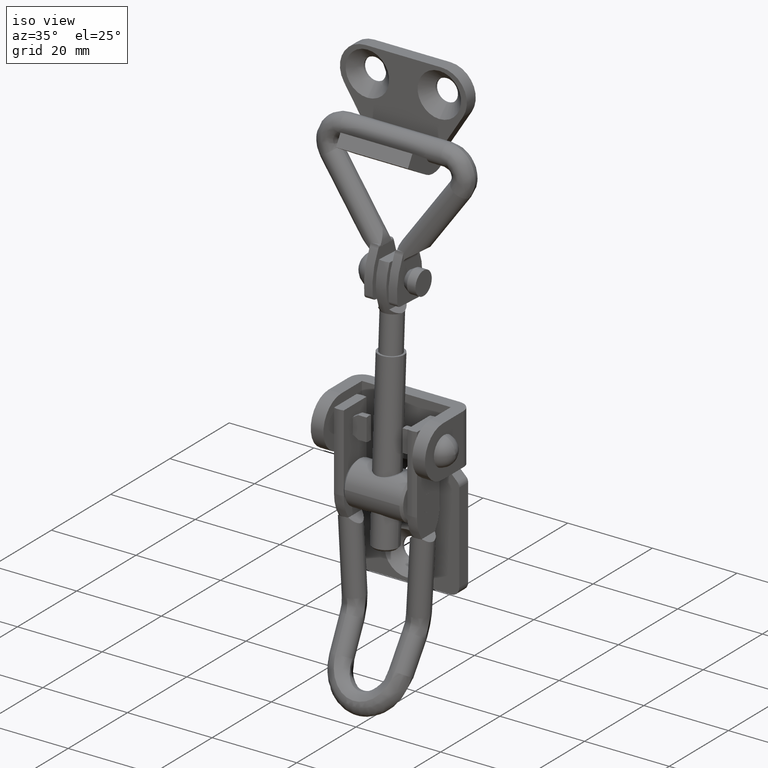
[diagram: clean part render]
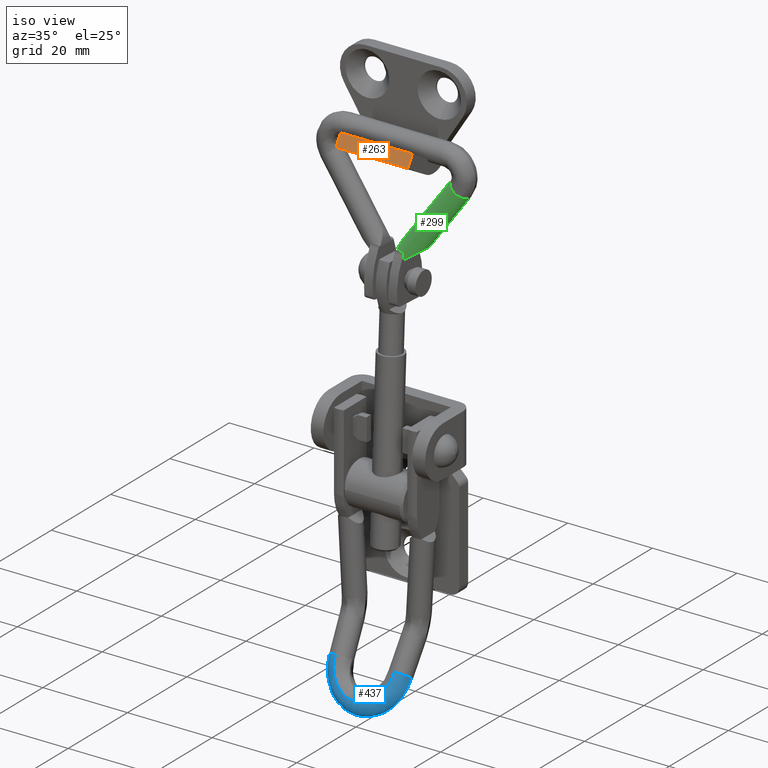
[diagram: same view with three faces highlighted in distinct colors, each labeled with its STEP entity id]
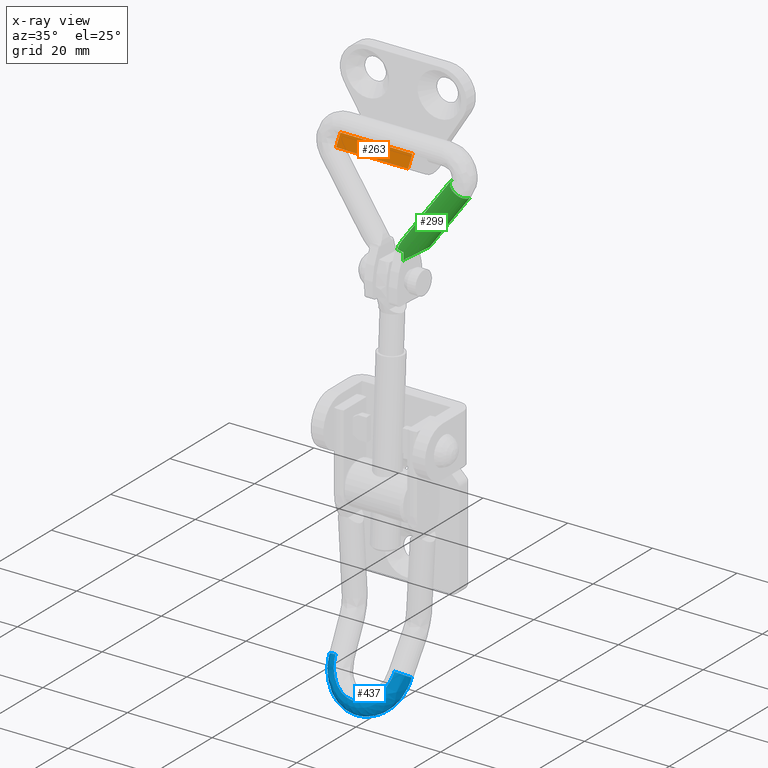
[diagram: x-ray of the same camera — body ghosted, the three highlighted faces saturated]
A machine part, iso view with three faces highlighted in distinct colors.
The next image is the same camera in x-ray (body ghosted, the three faces saturated) — at least one of them is partly hidden behind the body in this view.
Their STEP definitions:

[orange] entity #263 — the highlighted planar face has unit normal (0, 0.866, -0.5).
#263=ADVANCED_FACE('',(#515),#514,.F.);
#514=PLANE('',#2755);
#515=FACE_OUTER_BOUND('',#2756,.T.);
#2752=CARTESIAN_POINT('',(-1.02000000000E+01,-1.07500000000E+01,-1.19578838325E+01));
#2753=DIRECTION('',(0.00000000000E+00,8.66025403784E-01,-5.00000000000E-01));
#2754=DIRECTION('',(0.00000000000E+00,5.00000000000E-01,8.66025403784E-01));
#2755=AXIS2_PLACEMENT_3D('',#2752,#2753,#2754);
#2756=EDGE_LOOP('',(#4560,#4561,#4562,#4563));
#4560=ORIENTED_EDGE('',*,*,#5630,.T.);
#4561=ORIENTED_EDGE('',*,*,#5631,.F.);
#4562=ORIENTED_EDGE('',*,*,#5632,.F.);
#4563=ORIENTED_EDGE('',*,*,#5617,.T.);
#5617=EDGE_CURVE('',#6183,#6176,#6184,.T.);
#5630=EDGE_CURVE('',#6176,#6272,#6273,.T.);
#5631=EDGE_CURVE('',#6279,#6272,#6280,.T.);
#5632=EDGE_CURVE('',#6183,#6279,#6286,.T.);
#6176=VERTEX_POINT('',#9719);
#6183=VERTEX_POINT('',#9723);
#6184=LINE('',#9724,#9725);
#6272=VERTEX_POINT('',#9779);
#6273=LINE('',#9780,#9781);
#6279=VERTEX_POINT('',#9783);
#6280=LINE('',#9784,#9785);
#6286=LINE('',#9787,#9788);
#9719=CARTESIAN_POINT('',(-8.50000000000E+00,-9.10000000000E+00,-9.10000000000E+00));
#9723=CARTESIAN_POINT('',(8.50000000000E+00,-9.10000000000E+00,-9.10000000000E+00));
#9724=CARTESIAN_POINT('',(8.50000000000E+00,-9.10000000000E+00,-9.10000000000E+00));
#9725=VECTOR('',#9726,1.70000000000E+01);
#9726=DIRECTION('',(-1.00000000000E+00,0.00000000000E+00,0.00000000000E+00));
#9779=CARTESIAN_POINT('',(-8.50000000000E+00,-1.06000000000E+01,-1.16980762114E+01));
#9780=CARTESIAN_POINT('',(-8.50000000000E+00,-9.10000000000E+00,-9.10000000000E+00));
#9781=VECTOR('',#9782,3.00000000000E+00);
#9782=DIRECTION('',(0.00000000000E+00,-5.00000000000E-01,-8.66025403784E-01));
#9783=CARTESIAN_POINT('',(8.50000000000E+00,-1.06000000000E+01,-1.16980762114E+01));
#9784=CARTESIAN_POINT('',(8.50000000000E+00,-1.06000000000E+01,-1.16980762114E+01));
#9785=VECTOR('',#9786,1.70000000000E+01);
#9786=DIRECTION('',(-1.00000000000E+00,0.00000000000E+00,0.00000000000E+00));
#9787=CARTESIAN_POINT('',(8.50000000000E+00,-9.10000000000E+00,-9.10000000000E+00));
#9788=VECTOR('',#9789,3.00000000000E+00);
#9789=DIRECTION('',(0.00000000000E+00,-5.00000000000E-01,-8.66025403784E-01));

[blue] entity #437 — the highlighted face is a freeform B-spline surface patch.
#437=ADVANCED_FACE('',(#2280),#2279,.T.);
#2279=( BOUNDED_SURFACE() B_SPLINE_SURFACE( 3,2,((#4014,#4015,#4016),(#4017,#4018,#4019),(#4020,#4021,#4022),(#4023,#4024,#4025),(#4026,#4027,#4028),(#4029,#4030,#4031),(#4032,#4033,#4034),(#4035,#4036,#4037),(#4038,#4039,#4040),(#4041,#4042,#4043),(#4044,#4045,#4046),(#4047,#4048,#4049),(#4050,#4051,#4052),(#4053,#4054,#4055),(#4056,#4057,#4058),(#4059,#4060,#4061),(#4062,#4063,#4064),(#4065,#4066,#4067),(#4068,#4069,#4070),(#4071,#4072,#4073),(#4074,#4075,#4076),(#4077,#4078,#4079),(#4080,#4081,#4082),(#4083,#4084,#4085),(#4086,#4087,#4088),(#4089,#4090,#4091)), .UNSPECIFIED.,.F.,.F.,.F.) B_SPLINE_SURFACE_WITH_KNOTS((4,2,2,2,2,2,2,2,2,2,2,2,4),(3,3),(4.76735688268E+00,5.14631398880E+00,5.52527109493E+00,5.71474964799E+00,5.90422820105E+00,6.09370675412E+00,6.28318530718E+00,6.47266386024E+00,6.66214241331E+00,6.85162096637E+00,7.04109951943E+00,7.42005662556E+00,7.79901373168E+00),(0.00000000000E+00,1.00000000000E+00), .UNSPECIFIED. ) GEOMETRIC_REPRESENTATION_ITEM() RATIONAL_B_SPLINE_SURFACE(((1.00000000000E+00,6.97326999008E-01,1.00000000000E+00),(1.00000000000E+00,6.74733973146E-01,1.00000000000E+00),(1.00000000000E+00,6.51201940574E-01,1.00000000000E+00),(1.00000000000E+00,6.05605411265E-01,1.00000000000E+00),(1.00000000000E+00,5.83532613029E-01,1.00000000000E+00),(1.00000000000E+00,5.54680591126E-01,1.00000000000E+00),(1.00000000000E+00,5.45780470194E-01,1.00000000000E+00),(1.00000000000E+00,5.29977814437E-01,1.00000000000E+00),(1.00000000000E+00,5.23078020904E-01,1.00000000000E+00),(1.00000000000E+00,5.11788655972E-01,1.00000000000E+00),(1.00000000000E+00,5.07402224067E-01,1.00000000000E+00),(1.00000000000E+00,5.01506799872E-01,1.00000000000E+00),(1.00000000000E+00,5.00000000021E-01,1.00000000000E+00),(1.00000000000E+00,5.00000000021E-01,1.00000000000E+00),(1.00000000000E+00,5.01506799872E-01,1.00000000000E+00),(1.00000000000E+00,5.07402224067E-01,1.00000000000E+00),(1.00000000000E+00,5.11788655972E-01,1.00000000000E+00),(1.00000000000E+00,5.23078020904E-01,1.00000000000E+00),(1.00000000000E+00,5.29977814437E-01,1.00000000000E+00),(1.00000000000E+00,5.45780470194E-01,1.00000000000E+00),(1.00000000000E+00,5.54680591126E-01,1.00000000000E+00),(1.00000000000E+00,5.83532613029E-01,1.00000000000E+00),(1.00000000000E+00,6.05605411264E-01,1.00000000000E+00),(1.00000000000E+00,6.51201940574E-01,1.00000000000E+00),(1.00000000000E+00,6.74733973145E-01,1.00000000000E+00),(1.00000000000E+00,6.97326999008E-01,1.00000000000E+00))) REPRESENTATION_ITEM('') SURFACE() );
#2280=FACE_OUTER_BOUND('',#4092,.T.);
#4014=CARTESIAN_POINT('',(6.98942751645E+00,-7.34564990387E+00,-3.41345815809E+01));
#4015=CARTESIAN_POINT('',(9.55616006232E+00,-7.40680436283E+00,-3.42405042109E+01));
#4016=CARTESIAN_POINT('',(9.48565162947E+00,-5.18058639435E+00,-3.55219321453E+01));
#4017=CARTESIAN_POINT('',(6.94083938528E+00,-7.85547674127E+00,-3.50176275664E+01));
#4018=CARTESIAN_POINT('',(9.65948436213E+00,-8.08250903189E+00,-3.54108590288E+01));
#4019=CARTESIAN_POINT('',(9.41971088681E+00,-5.69041097024E+00,-3.67203463811E+01));
#4020=CARTESIAN_POINT('',(6.72302056839E+00,-8.35958126673E+00,-3.58907622169E+01));
#4021=CARTESIAN_POINT('',(9.54319834463E+00,-8.76012997613E+00,-3.65845329326E+01));
#4022=CARTESIAN_POINT('',(9.12409934282E+00,-6.19451775721E+00,-3.79053201514E+01));
#4023=CARTESIAN_POINT('',(5.97949486357E+00,-9.28597989472E+00,-3.74953317089E+01));
#4024=CARTESIAN_POINT('',(8.87936352985E+00,-1.00860935467E+01,-3.88811692061E+01));
#4025=CARTESIAN_POINT('',(8.11502874341E+00,-7.12091638520E+00,-4.00829501762E+01));
#4026=CARTESIAN_POINT('',(5.45404995127E+00,-9.70787216086E+00,-3.82260705492E+01));
#4027=CARTESIAN_POINT('',(8.30165838731E+00,-1.07298277734E+01,-3.99961495934E+01));
#4028=CARTESIAN_POINT('',(7.40192493387E+00,-7.54280865134E+00,-4.10746671738E+01));
#4029=CARTESIAN_POINT('',(4.49076000671E+00,-1.02342675932E+01,-3.91378141831E+01));
#4030=CARTESIAN_POINT('',(7.09398654598E+00,-1.15897013064E+01,-4.14854942409E+01));
#4031=CARTESIAN_POINT('',(6.09460286625E+00,-8.06920408371E+00,-4.23120335340E+01));
#4032=CARTESIAN_POINT('',(4.14079176341E+00,-1.03921133545E+01,-3.94112110613E+01));
#4033=CARTESIAN_POINT('',(6.62052062101E+00,-1.18624200783E+01,-4.19578570100E+01));
#4034=CARTESIAN_POINT('',(5.61964596463E+00,-8.22704984497E+00,-4.26830721545E+01));
#4035=CARTESIAN_POINT('',(3.39560940166E+00,-1.06669294621E+01,-3.98872065226E+01));
#4036=CARTESIAN_POINT('',(5.55182677491E+00,-1.23572031486E+01,-4.28148464266E+01));
#4037=CARTESIAN_POINT('',(4.60832704511E+00,-8.50186595260E+00,-4.33290659948E+01));
#4038=CARTESIAN_POINT('',(3.00041125749E+00,-1.07838939173E+01,-4.00897949017E+01));
#4039=CARTESIAN_POINT('',(4.95691452399E+00,-1.25758470069E+01,-4.31935486979E+01));
#4040=CARTESIAN_POINT('',(4.07198670659E+00,-8.61883040779E+00,-4.36040073664E+01));
#4041=CARTESIAN_POINT('',(2.17891351155E+00,-1.09727588466E+01,-4.04169185550E+01));
#4042=CARTESIAN_POINT('',(3.66272114045E+00,-1.29411872390E+01,-4.38263365421E+01));
#4043=CARTESIAN_POINT('',(2.95709690854E+00,-8.80769533706E+00,-4.40479608959E+01));
#4044=CARTESIAN_POINT('',(1.75263151967E+00,-1.10446552721E+01,-4.05414468168E+01));
#4045=CARTESIAN_POINT('',(2.96745768281E+00,-1.30844361741E+01,-4.40744509758E+01));
#4046=CARTESIAN_POINT('',(2.37857134813E+00,-8.87959176255E+00,-4.42169635369E+01));
#4047=CARTESIAN_POINT('',(8.84223767451E-01,-1.11408086337E+01,-4.07079893244E+01));
#4048=CARTESIAN_POINT('',(1.51123993785E+00,-1.32800267228E+01,-4.44132237437E+01));
#4049=CARTESIAN_POINT('',(1.20001797011E+00,-8.97574512413E+00,-4.44429855115E+01));
#4050=CARTESIAN_POINT('',(4.42116622310E-01,-1.11650635086E+01,-4.07500000001E+01));
#4051=CARTESIAN_POINT('',(7.57914206426E-01,-1.33301270177E+01,-4.45000000000E+01));
#4052=CARTESIAN_POINT('',(6.00015415992E-01,-8.99999999906E+00,-4.45000000000E+01));
#4053=CARTESIAN_POINT('',(-4.42116622310E-01,-1.11650635086E+01,-4.07500000001E+01));
#4054=CARTESIAN_POINT('',(-7.57914206426E-01,-1.33301270177E+01,-4.45000000000E+01));
#4055=CARTESIAN_POINT('',(-6.00015415992E-01,-8.99999999906E+00,-4.45000000000E+01));
#4056=CARTESIAN_POINT('',(-8.84223767451E-01,-1.11408086337E+01,-4.07079893244E+01));
#4057=CARTESIAN_POINT('',(-1.51123993785E+00,-1.32800267228E+01,-4.44132237437E+01));
#4058=CARTESIAN_POINT('',(-1.20001797011E+00,-8.97574512413E+00,-4.44429855115E+01));
#4059=CARTESIAN_POINT('',(-1.75263151967E+00,-1.10446552721E+01,-4.05414468168E+01));
#4060=CARTESIAN_POINT('',(-2.96745768281E+00,-1.30844361741E+01,-4.40744509758E+01));
#4061=CARTESIAN_POINT('',(-2.37857134813E+00,-8.87959176255E+00,-4.42169635369E+01));
#4062=CARTESIAN_POINT('',(-2.17891351155E+00,-1.09727588466E+01,-4.04169185550E+01));
#4063=CARTESIAN_POINT('',(-3.66272114045E+00,-1.29411872390E+01,-4.38263365421E+01));
#4064=CARTESIAN_POINT('',(-2.95709690854E+00,-8.80769533706E+00,-4.40479608959E+01));
#4065=CARTESIAN_POINT('',(-3.00041125749E+00,-1.07838939173E+01,-4.00897949017E+01));
#4066=CARTESIAN_POINT('',(-4.95691452399E+00,-1.25758470069E+01,-4.31935486979E+01));
#4067=CARTESIAN_POINT('',(-4.07198670659E+00,-8.61883040779E+00,-4.36040073664E+01));
#4068=CARTESIAN_POINT('',(-3.39560940166E+00,-1.06669294621E+01,-3.98872065226E+01));
#4069=CARTESIAN_POINT('',(-5.55182677491E+00,-1.23572031486E+01,-4.28148464266E+01));
#4070=CARTESIAN_POINT('',(-4.60832704511E+00,-8.50186595260E+00,-4.33290659948E+01));
#4071=CARTESIAN_POINT('',(-4.14079176341E+00,-1.03921133545E+01,-3.94112110613E+01));
#4072=CARTESIAN_POINT('',(-6.62052062101E+00,-1.18624200783E+01,-4.19578570100E+01));
#4073=CARTESIAN_POINT('',(-5.61964596463E+00,-8.22704984497E+00,-4.26830721545E+01));
#4074=CARTESIAN_POINT('',(-4.49076000671E+00,-1.02342675932E+01,-3.91378141831E+01));
#4075=CARTESIAN_POINT('',(-7.09398654598E+00,-1.15897013064E+01,-4.14854942409E+01));
#4076=CARTESIAN_POINT('',(-6.09460286625E+00,-8.06920408371E+00,-4.23120335340E+01));
#4077=CARTESIAN_POINT('',(-5.45404995127E+00,-9.70787216086E+00,-3.82260705492E+01));
#4078=CARTESIAN_POINT('',(-8.30165838731E+00,-1.07298277734E+01,-3.99961495934E+01));
#4079=CARTESIAN_POINT('',(-7.40192493387E+00,-7.54280865134E+00,-4.10746671738E+01));
#4080=CARTESIAN_POINT('',(-5.97949486357E+00,-9.28597989472E+00,-3.74953317089E+01));
#4081=CARTESIAN_POINT('',(-8.87936352985E+00,-1.00860935467E+01,-3.88811692061E+01));
#4082=CARTESIAN_POINT('',(-8.11502874341E+00,-7.12091638520E+00,-4.00829501762E+01));
#4083=CARTESIAN_POINT('',(-6.72302056839E+00,-8.35958126673E+00,-3.58907622169E+01));
#4084=CARTESIAN_POINT('',(-9.54319834463E+00,-8.76012997613E+00,-3.65845329326E+01));
#4085=CARTESIAN_POINT('',(-9.12409934282E+00,-6.19451775721E+00,-3.79053201514E+01));
#4086=CARTESIAN_POINT('',(-6.94083938527E+00,-7.85547674127E+00,-3.50176275664E+01));
#4087=CARTESIAN_POINT('',(-9.65948436213E+00,-8.08250903190E+00,-3.54108590288E+01));
#4088=CARTESIAN_POINT('',(-9.41971088681E+00,-5.69041097025E+00,-3.67203463811E+01));
#4089=CARTESIAN_POINT('',(-6.98942751645E+00,-7.34564990387E+00,-3.41345815809E+01));
#4090=CARTESIAN_POINT('',(-9.55616006232E+00,-7.40680436283E+00,-3.42405042109E+01));
#4091=CARTESIAN_POINT('',(-9.48565162947E+00,-5.18058639435E+00,-3.55219321453E+01));
#4092=EDGE_LOOP('',(#5393,#5394,#5395,#5396));
#5393=ORIENTED_EDGE('',*,*,#6057,.T.);
#5394=ORIENTED_EDGE('',*,*,#6058,.F.);
#5395=ORIENTED_EDGE('',*,*,#6059,.T.);
#5396=ORIENTED_EDGE('',*,*,#6060,.T.);
#6057=EDGE_CURVE('',#9111,#9112,#9113,.T.);
#6058=EDGE_CURVE('',#9119,#9112,#9120,.T.);
#6059=EDGE_CURVE('',#9119,#9126,#9127,.T.);
#6060=EDGE_CURVE('',#9126,#9111,#9133,.T.);
#9111=VERTEX_POINT('',#12006);
#9112=VERTEX_POINT('',#12007);
#9113=(BOUNDED_CURVE() B_SPLINE_CURVE(2,(#12008,#12009,#12010,#12011,#12012),.UNSPECIFIED.,.F.,.F.) B_SPLINE_CURVE_WITH_KNOTS((3,2,3),(-1.51582842451E+00,-0.00000000000E+00,1.51582842451E+00),.UNSPECIFIED.) CURVE() GEOMETRIC_REPRESENTATION_ITEM() RATIONAL_B_SPLINE_CURVE((1.00000000000E+00,7.26271376902E-01,1.00000000000E+00,7.26271376902E-01,1.00000000000E+00)) REPRESENTATION_ITEM('') );
#9119=VERTEX_POINT('',#12013);
#9120=CIRCLE('',#12017,2.50000000000E+00);
#9126=VERTEX_POINT('',#12018);
#9127=(BOUNDED_CURVE() B_SPLINE_CURVE(2,(#12019,#12020,#12021,#12022,#12023),.UNSPECIFIED.,.F.,.F.) B_SPLINE_CURVE_WITH_KNOTS((3,2,3),(-1.51582842450E+00,5.99520433298E-15,1.51582842450E+00),.UNSPECIFIED.) CURVE() GEOMETRIC_REPRESENTATION_ITEM() RATIONAL_B_SPLINE_CURVE((1.00000000000E+00,7.26271376906E-01,1.00000000000E+00,7.26271376906E-01,1.00000000000E+00)) REPRESENTATION_ITEM('') );
#9133=CIRCLE('',#12027,2.50000000000E+00);
#12006=CARTESIAN_POINT('',(-9.48565162947E+00,-5.18058639435E+00,-3.55219321453E+01));
#12007=CARTESIAN_POINT('',(9.48565162947E+00,-5.18058639435E+00,-3.55219321453E+01));
#12008=CARTESIAN_POINT('',(-9.48565162947E+00,-5.18058639457E+00,-3.55219321452E+01));
#12009=CARTESIAN_POINT('',(-8.99164843406E+00,-8.99999999932E+00,-4.45000000000E+01));
#12010=CARTESIAN_POINT('',(0.00000000000E+00,-8.99999999932E+00,-4.45000000000E+01));
#12011=CARTESIAN_POINT('',(8.99164843406E+00,-8.99999999932E+00,-4.45000000000E+01));
#12012=CARTESIAN_POINT('',(9.48565162947E+00,-5.18058639457E+00,-3.55219321452E+01));
#12013=CARTESIAN_POINT('',(6.98942751645E+00,-7.34564990387E+00,-3.41345815809E+01));
#12014=CARTESIAN_POINT('',(6.98942751645E+00,-5.18058639435E+00,-3.53845815808E+01));
#12015=DIRECTION('',(4.75975933859E-02,4.99433296080E-01,8.65043843901E-01));
#12016=DIRECTION('',(-3.62855888516E-13,-8.66025403809E-01,4.99999999958E-01));
#12017=AXIS2_PLACEMENT_3D('',#12014,#12015,#12016);
#12018=CARTESIAN_POINT('',(-6.98942751645E+00,-7.34564990387E+00,-3.41345815809E+01));
#12019=CARTESIAN_POINT('',(6.98942751645E+00,-7.34564990387E+00,-3.41345815809E+01));
#12020=CARTESIAN_POINT('',(6.62542516187E+00,-1.11650635086E+01,-4.07500000001E+01));
#12021=CARTESIAN_POINT('',(1.16173737297E-12,-1.11650635086E+01,-4.07500000001E+01));
#12022=CARTESIAN_POINT('',(-6.62542516187E+00,-1.11650635086E+01,-4.07500000001E+01));
#12023=CARTESIAN_POINT('',(-6.98942751645E+00,-7.34564990387E+00,-3.41345815809E+01));
#12024=CARTESIAN_POINT('',(-6.98942751645E+00,-5.18058639435E+00,-3.53845815808E+01));
#12025=DIRECTION('',(4.75975933859E-02,-4.99433296080E-01,-8.65043843901E-01));
#12026=DIRECTION('',(3.62855888516E-13,-8.66025403809E-01,4.99999999958E-01));
#12027=AXIS2_PLACEMENT_3D('',#12024,#12025,#12026);

[green] entity #299 — the highlighted cylindrical surface (edge-blend (fillet) strip) has radius 2.5 mm, axis along (0.5807, 0.0398, 0.8131).
#299=ADVANCED_FACE('',(#880),#879,.T.);
#879=CYLINDRICAL_SURFACE('',#3057,2.50000000000E+00);
#880=FACE_OUTER_BOUND('',#3058,.T.);
#3054=CARTESIAN_POINT('',(1.52564620824E+01,5.89306381471E-10,-8.82281181029E+00));
#3055=DIRECTION('',(5.80702955711E-01,-1.54862143677E-11,8.14115518356E-01));
#3056=DIRECTION('',(-8.14115518356E-01,-0.00000000000E+00,5.80702955711E-01));
#3057=AXIS2_PLACEMENT_3D('',#3054,#3055,#3056);
#3058=EDGE_LOOP('',(#4763,#4764,#4765,#4766,#4767,#4768,#4769,#4770,#4771));
#4763=ORIENTED_EDGE('',*,*,#5754,.T.);
#4764=ORIENTED_EDGE('',*,*,#5712,.T.);
#4765=ORIENTED_EDGE('',*,*,#5755,.F.);
#4766=ORIENTED_EDGE('',*,*,#5722,.F.);
#4767=ORIENTED_EDGE('',*,*,#5679,.T.);
#4768=ORIENTED_EDGE('',*,*,#5753,.F.);
#4769=ORIENTED_EDGE('',*,*,#5677,.T.);
#4770=ORIENTED_EDGE('',*,*,#5672,.T.);
#4771=ORIENTED_EDGE('',*,*,#5683,.F.);
#5672=EDGE_CURVE('',#6546,#6547,#6548,.T.);
#5677=EDGE_CURVE('',#6581,#6546,#6582,.T.);
#5679=EDGE_CURVE('',#6595,#6588,#6596,.T.);
#5683=EDGE_CURVE('',#6622,#6547,#6623,.T.);
#5712=EDGE_CURVE('',#6820,#6813,#6821,.T.);
#5722=EDGE_CURVE('',#6595,#6889,#6890,.T.);
#5753=EDGE_CURVE('',#6581,#6588,#7096,.T.);
#5754=EDGE_CURVE('',#6622,#6820,#7102,.T.);
#5755=EDGE_CURVE('',#6889,#6813,#7108,.T.);
#6546=VERTEX_POINT('',#9933);
#6547=VERTEX_POINT('',#9934);
#6548=(BOUNDED_CURVE() B_SPLINE_CURVE(3,(#9935,#9936,#9937,#9938,#9939,#9940,#9941,#9942,#9943,#9944),.UNSPECIFIED.,.F.,.F.) B_SPLINE_CURVE_WITH_KNOTS((4,2,2,2,4),(-3.64334791778E-03,-3.18581317333E-03,-2.72827842888E-03,-1.81320893998E-03,1.69300378330E-05),.UNSPECIFIED.) CURVE() GEOMETRIC_REPRESENTATION_ITEM() RATIONAL_B_SPLINE_CURVE((1.00000000000E+00,1.00000000000E+00,1.00000000000E+00,1.00000000000E+00,1.00000000000E+00,1.00000000000E+00,1.00000000000E+00,1.00000000000E+00,1.00000000000E+00,1.00000000000E+00)) REPRESENTATION_ITEM('') );
#6581=VERTEX_POINT('',#9974);
#6582=LINE('',#9975,#9976);
#6588=VERTEX_POINT('',#9978);
#6595=VERTEX_POINT('',#9983);
#6596=LINE('',#9984,#9985);
#6622=VERTEX_POINT('',#10005);
#6623=(BOUNDED_CURVE() B_SPLINE_CURVE(3,(#10006,#10007,#10008,#10009,#10010,#10011,#10012,#10013,#10014,#10015),.UNSPECIFIED.,.F.,.F.) B_SPLINE_CURVE_WITH_KNOTS((4,2,2,2,4),(0.00000000000E+00,2.05073298357E-04,4.10146596713E-04,6.15219895070E-04,8.20293193427E-04),.UNSPECIFIED.) CURVE() GEOMETRIC_REPRESENTATION_ITEM() RATIONAL_B_SPLINE_CURVE((1.00000000000E+00,1.00000000000E+00,1.00000000000E+00,1.00000000000E+00,1.00000000000E+00,1.00000000000E+00,1.00000000000E+00,1.00000000000E+00,1.00000000000E+00,1.00000000000E+00)) REPRESENTATION_ITEM('') );
#6813=VERTEX_POINT('',#10175);
#6820=VERTEX_POINT('',#10179);
#6821=(BOUNDED_CURVE() B_SPLINE_CURVE(2,(#10180,#10181,#10182),.UNSPECIFIED.,.F.,.F.) B_SPLINE_CURVE_WITH_KNOTS((3,3),(-1.65923450365E+00,-1.14541659210E+00),.UNSPECIFIED.) CURVE() GEOMETRIC_REPRESENTATION_ITEM() RATIONAL_B_SPLINE_CURVE((1.00000000000E+00,9.67180007516E-01,1.00000000000E+00)) REPRESENTATION_ITEM('') );
#6889=VERTEX_POINT('',#10224);
#6890=(BOUNDED_CURVE() B_SPLINE_CURVE(2,(#10225,#10226,#10227),.UNSPECIFIED.,.F.,.F.) B_SPLINE_CURVE_WITH_KNOTS((3,3),(-3.14159265329E+00,-1.94041117322E+00),.UNSPECIFIED.) CURVE() GEOMETRIC_REPRESENTATION_ITEM() RATIONAL_B_SPLINE_CURVE((1.00000000000E+00,8.25001914004E-01,1.00000000000E+00)) REPRESENTATION_ITEM('') );
#7096=CIRCLE('',#10432,2.50000000000E+00);
#7102=(BOUNDED_CURVE() B_SPLINE_CURVE(2,(#10433,#10434,#10435),.UNSPECIFIED.,.F.,.F.) B_SPLINE_CURVE_WITH_KNOTS((3,3),(-5.32718542187E+00,-4.80082715719E+00),.UNSPECIFIED.) CURVE() GEOMETRIC_REPRESENTATION_ITEM() RATIONAL_B_SPLINE_CURVE((1.00000000000E+00,9.65567802823E-01,1.00000000000E+00)) REPRESENTATION_ITEM('') );
#7108=(BOUNDED_CURVE() B_SPLINE_CURVE(3,(#10436,#10437,#10438,#10439,#10440,#10441,#10442,#10443,#10444,#10445),.UNSPECIFIED.,.F.,.F.) B_SPLINE_CURVE_WITH_KNOTS((4,2,2,2,4),(4.35843879265E-18,2.40709888352E-04,4.81419776704E-04,7.22129665056E-04,9.62839553408E-04),.UNSPECIFIED.) CURVE() GEOMETRIC_REPRESENTATION_ITEM() RATIONAL_B_SPLINE_CURVE((1.00000000000E+00,1.00000000000E+00,1.00000000000E+00,1.00000000000E+00,1.00000000000E+00,1.00000000000E+00,1.00000000000E+00,1.00000000000E+00,1.00000000000E+00,1.00000000000E+00)) REPRESENTATION_ITEM('') );
#9933=CARTESIAN_POINT('',(2.82942240822E+00,-1.95066185427E-10,-2.19397518414E+01));
#9934=CARTESIAN_POINT('',(1.90002420177E+00,-1.95234293716E+00,-2.48588235184E+01));
#9935=CARTESIAN_POINT('',(2.82942240822E+00,8.66434328587E-10,-2.19397518414E+01));
#9936=CARTESIAN_POINT('',(2.75711021717E+00,-8.80526018829E-02,-2.20411297943E+01));
#9937=CARTESIAN_POINT('',(2.68735383703E+00,-1.77695140914E-01,-2.21470927363E+01));
#9938=CARTESIAN_POINT('',(2.55743115475E+00,-3.54247015109E-01,-2.23617676516E+01));
#9939=CARTESIAN_POINT('',(2.49651200192E+00,-4.42070841631E-01,-2.24715293653E+01));
#9940=CARTESIAN_POINT('',(2.32586907936E+00,-7.03782536619E-01,-2.28083948944E+01));
#9941=CARTESIAN_POINT('',(2.22791998356E+00,-8.76447413578E-01,-2.30437237118E+01));
#9942=CARTESIAN_POINT('',(1.98712481546E+00,-1.38009097251E+00,-2.37800625688E+01));
#9943=CARTESIAN_POINT('',(1.89827924967E+00,-1.69072636315E+00,-2.42979971895E+01));
#9944=CARTESIAN_POINT('',(1.90002420177E+00,-1.95234293716E+00,-2.48588235184E+01));
#9974=CARTESIAN_POINT('',(1.32211732775E+01,2.68007838811E-10,-7.37105443357E+00));
#9975=CARTESIAN_POINT('',(1.32211732775E+01,5.89306381710E-10,-7.37105443357E+00));
#9976=VECTOR('',#9977,1.78951230868E+01);
#9977=DIRECTION('',(-5.80702955711E-01,1.54862143677E-11,-8.14115518356E-01));
#9978=CARTESIAN_POINT('',(1.72917508693E+01,2.68001020404E-10,-1.02745692121E+01));
#9983=CARTESIAN_POINT('',(8.24506828367E+00,6.63913368726E-11,-2.29575504337E+01));
#9984=CARTESIAN_POINT('',(8.24506828367E+00,8.30590638648E-10,-2.29575504337E+01));
#9985=VECTOR('',#9986,1.55788471484E+01);
#9986=DIRECTION('',(5.80702955711E-01,-1.54862143677E-11,8.14115518356E-01));
#10005=CARTESIAN_POINT('',(2.40000000000E+00,-2.04222718603E+00,-2.43637429881E+01));
#10006=CARTESIAN_POINT('',(2.40000000000E+00,-2.04222718603E+00,-2.43637429881E+01));
#10007=CARTESIAN_POINT('',(2.33999657252E+00,-2.00773525867E+00,-2.43637429881E+01));
#10008=CARTESIAN_POINT('',(2.28043917481E+00,-1.97511855933E+00,-2.43741547250E+01));
#10009=CARTESIAN_POINT('',(2.16241647373E+00,-1.91883424353E+00,-2.44192820490E+01));
#10010=CARTESIAN_POINT('',(2.10547856488E+00,-1.89622670346E+00,-2.44540716596E+01));
#10011=CARTESIAN_POINT('',(2.00723164711E+00,-1.87357078805E+00,-2.45470309831E+01));
#10012=CARTESIAN_POINT('',(1.96663636597E+00,-1.87421745191E+00,-2.46051606852E+01));
#10013=CARTESIAN_POINT('',(1.91314712634E+00,-1.89983588231E+00,-2.47309155583E+01));
#10014=CARTESIAN_POINT('',(1.90064506831E+00,-1.92343993096E+00,-2.47957235779E+01));
#10015=CARTESIAN_POINT('',(1.90002420177E+00,-1.95234293716E+00,-2.48588235184E+01));
#10175=CARTESIAN_POINT('',(3.90000000000E+00,-2.27720523599E+00,-2.65205670506E+01));
#10179=CARTESIAN_POINT('',(3.90000000000E+00,-2.49999999965E+00,-2.43637429881E+01));
#10180=CARTESIAN_POINT('',(3.90000000000E+00,-2.49999999965E+00,-2.43637429881E+01));
#10181=CARTESIAN_POINT('',(3.90000000000E+00,-2.54823901344E+00,-2.54903419751E+01));
#10182=CARTESIAN_POINT('',(3.90000000000E+00,-2.27720523599E+00,-2.65205670506E+01));
#10224=CARTESIAN_POINT('',(4.32642356365E+00,-2.33116638392E+00,-2.57014150063E+01));
#10225=CARTESIAN_POINT('',(8.24506828367E+00,6.63916369516E-11,-2.29575504337E+01));
#10226=CARTESIAN_POINT('',(8.24506828238E+00,-1.71251097730E+00,-2.29575504346E+01));
#10227=CARTESIAN_POINT('',(4.32642356365E+00,-2.33116638392E+00,-2.57014150063E+01));
#10429=CARTESIAN_POINT('',(1.52564620734E+01,5.89304342516E-10,-8.82281182284E+00));
#10430=DIRECTION('',(5.80702955711E-01,-1.54863363940E-11,8.14115518356E-01));
#10431=DIRECTION('',(-8.14115518356E-01,-0.00000000000E+00,5.80702955711E-01));
#10432=AXIS2_PLACEMENT_3D('',#10429,#10430,#10431);
#10433=CARTESIAN_POINT('',(2.40000000000E+00,-2.04222718603E+00,-2.43637429881E+01));
#10434=CARTESIAN_POINT('',(3.07586760017E+00,-2.43073792869E+00,-2.43637429881E+01));
#10435=CARTESIAN_POINT('',(3.90000000000E+00,-2.49999999965E+00,-2.43637429881E+01));
#10436=CARTESIAN_POINT('',(4.32642356365E+00,-2.33116638392E+00,-2.57014150063E+01));
#10437=CARTESIAN_POINT('',(4.26030038710E+00,-2.34160556982E+00,-2.57477149529E+01));
#10438=CARTESIAN_POINT('',(4.20073107431E+00,-2.34789625746E+00,-2.58011903295E+01));
#10439=CARTESIAN_POINT('',(4.09466425837E+00,-2.35369290172E+00,-2.59223077084E+01));
#10440=CARTESIAN_POINT('',(4.04853335221E+00,-2.35306528836E+00,-2.59900712008E+01));
#10441=CARTESIAN_POINT('',(3.97492062959E+00,-2.34477944290E+00,-2.61324311758E+01));
#10442=CARTESIAN_POINT('',(3.94642242117E+00,-2.33697041698E+00,-2.62090987764E+01));
#10443=CARTESIAN_POINT('',(3.90918322023E+00,-2.31348541674E+00,-2.63637078984E+01));
#10444=CARTESIAN_POINT('',(3.90000000000E+00,-2.29791241154E+00,-2.64418571137E+01));
#10445=CARTESIAN_POINT('',(3.90000000000E+00,-2.27720523599E+00,-2.65205670506E+01));